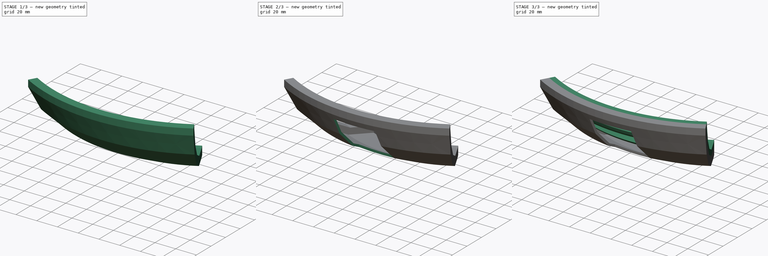
[diagram: build sequence overview — one tinted view per stage of 3, left to right]
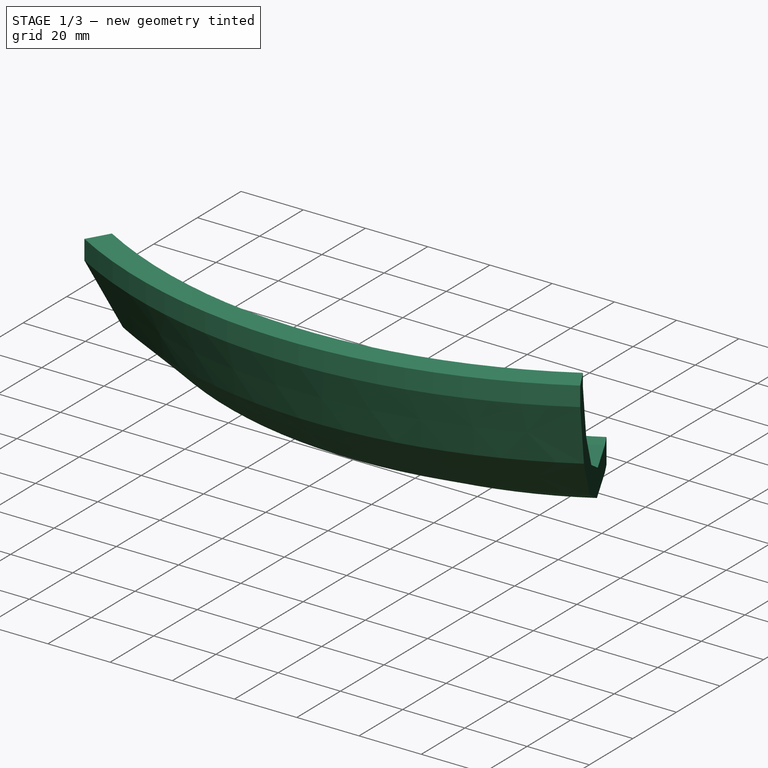
[diagram: stage 1 of 3 — iso view after this stage's code; geometry added in this stage tinted green]
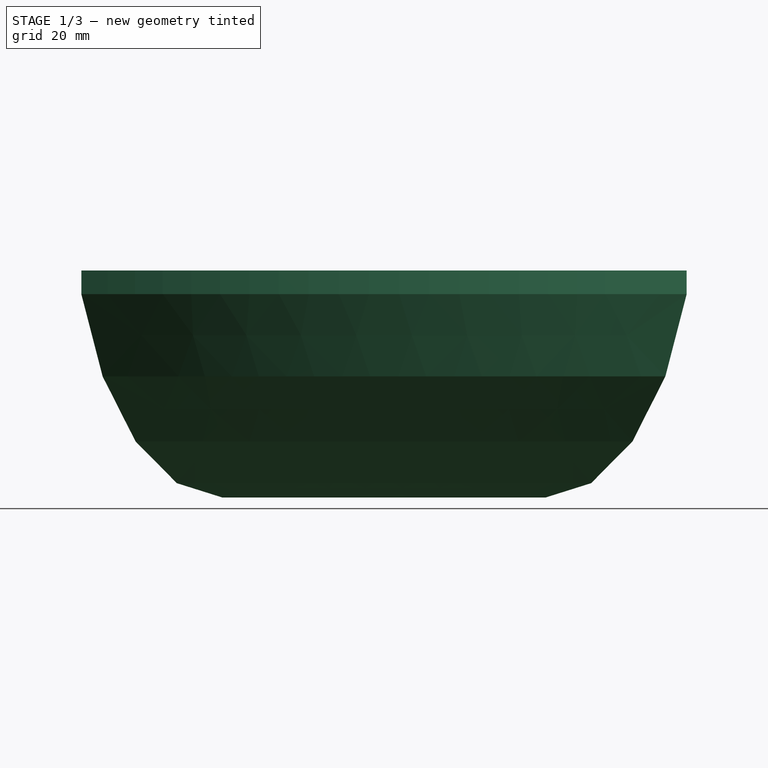
[diagram: stage 1 of 3 — front view after this stage's code; geometry added in this stage tinted green]
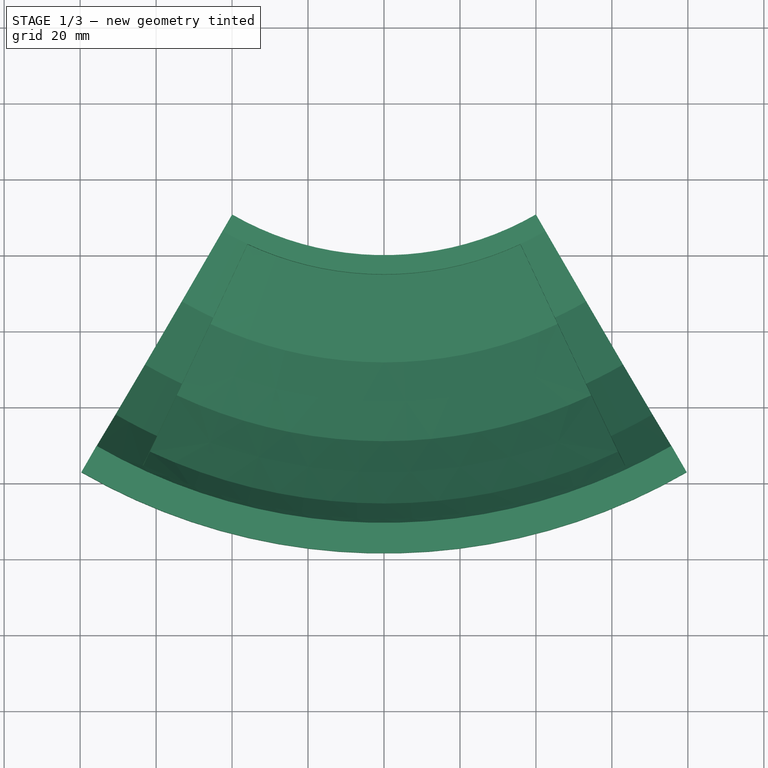
[diagram: stage 1 of 3 — top view after this stage's code; geometry added in this stage tinted green]
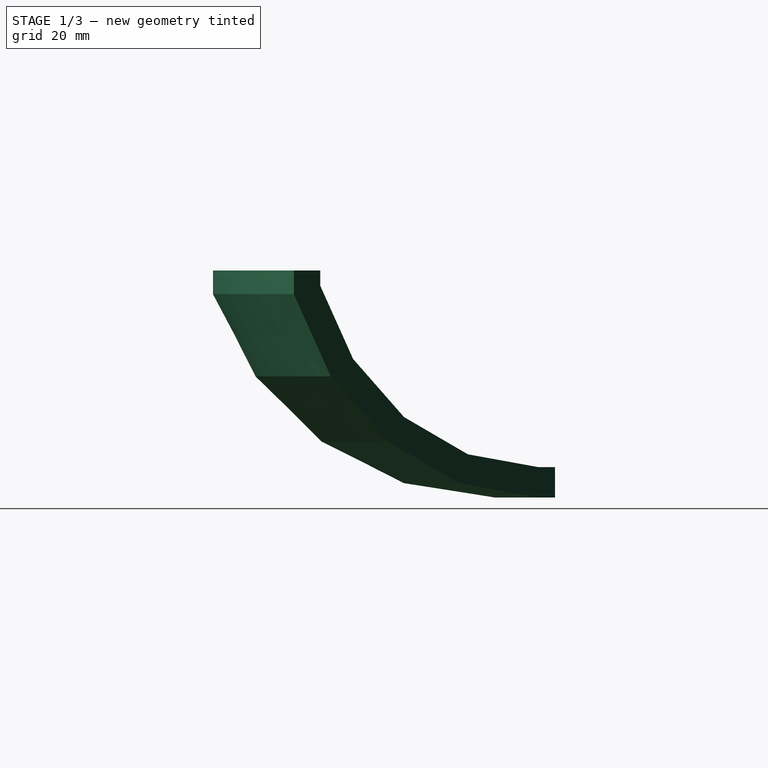
[diagram: stage 1 of 3 — right view after this stage's code; geometry added in this stage tinted green]
FCSTD DOCUMENT  (FreeCAD 2023.521R14555 (Git shallow))
Label: Key_holder
License: All rights reserved
LicenseURL: https://en.wikipedia.org/wiki/All_rights_reserved
objects: Sketcher::SketchObject×5, PartDesign::Revolution×2, PartDesign::Groove×2, PartDesign::Body×2, Spreadsheet::Sheet×1, Part::SubShapeBinder×1, PartDesign::Pocket×1
note: 28 computed .brp shape members not serialized (recipe doc carries the construction recipe); baked Part::Feature solids carry a one-line shape summary decoded from their .brp

FEATURE [PartDesign::Body] Body  label="Inner"
  AutoGroupSolids = false
  ClaimAllChildren = false
  ExportMode = 0
  FixShape = 1
  Group = -> [Sketch,Revolution,Sketch001,Groove]
  InvalidShape = false
  Origin = -> Origin
  Tip = -> Groove
  TreeRank = 10
  ValidateShape = false
  _ExportChildren = -> [Revolution,Groove]
  _GroupVersion = 1
FEATURE [Spreadsheet::Sheet] Spreadsheet  label="Dims"
  PythonMode = false
  ShowCells = 0
  TreeRank = 15
  cells = A1=Dist; B1(dist)=65; A2=Off; B2(offset)=5
FEATURE [Part::SubShapeBinder] Import  label="Import(Groove)"
  BindCopyOnChange = 0
  BindMode = 0
  ClaimChildren = false
  Context = -> Body001 [Import.]
  EdgeTolerance = 1e-06
  FillStyle = 0
  FixShape = 1
  Fuse = false
  InvalidShape = false
  MakeFace = false
  MergeEdges = true
  OffsetFill = false
  OffsetIntersection = false
  OffsetJoinType = 0
  OffsetOpenResult = false
  Outline = false
  PartialLoad = false
  Relative = true
  SplitEdges = false
  Support = -> [Body[Groove.]]
  TightBound = false
  TreeRank = 19
  ValidateShape = false
  _Version = 8
FEATURE [Sketcher::SketchObject] Sketch002
  ArcFitTolerance = 1e-06
  AttachmentSupport = -> [YZ_Plane001]
  ExternalBSplineMaxDegree = 5
  ExternalBSplineTolerance = 0.0001
  ExternalGeometry = -> [Import]
  FixShape = 1
  FullyConstrained = true
  InternalTolerance = 1e-06
  InvalidShape = false
  MakeInternals = false
  MapMode = 5
  Placement = pos=(0,0,0) rot=(0.57735,0.57735,0.57735;2.0944rad)
  Support = -> [YZ_Plane001]
  TreeRank = 11
  ValidateShape = false
  sketch-geometry (14):
    g0: LineSegment StartX=-151.359 StartY=47.793 StartZ=0 EndX=-141.363 EndY=28.488 EndZ=0
    g1: LineSegment StartX=-141.363 StartY=28.488 StartZ=0 EndX=-125.876 EndY=13.1912 EndZ=0
    g2: LineSegment StartX=-125.876 StartY=13.1912 StartZ=0 EndX=-106.464 EndY=3.37936 EndZ=0
    g3: LineSegment StartX=-106.464 StartY=3.37936 StartZ=0 EndX=-85 EndY=-4.4e-15 EndZ=0
    g4: LineSegment StartX=-79.9751 StartY=-8 StartZ=0 EndX=-85 EndY=-8 EndZ=0
    g5: LineSegment StartX=-109.071 StartY=-4.21015 StartZ=0 EndX=-130.818 EndY=6.78197 EndZ=0
    g6: LineSegment StartX=-130.818 StartY=6.78197 StartZ=0 EndX=-148.154 EndY=23.9055 EndZ=0
    g7: LineSegment StartX=-148.154 StartY=23.9055 StartZ=0 EndX=-159.359 EndY=45.5438 EndZ=0
    g8: LineSegment StartX=-159.359 StartY=45.5438 StartZ=0 EndX=-159.359 EndY=51.793 EndZ=0
    g9: LineSegment StartX=-159.359 StartY=51.793 StartZ=0 EndX=-151.359 EndY=51.793 EndZ=0
    g10: LineSegment StartX=-151.359 StartY=51.793 StartZ=0 EndX=-151.359 EndY=47.793 EndZ=0
    g11: LineSegment StartX=-109.071 StartY=-4.21015 StartZ=0 EndX=-85 EndY=-8 EndZ=0
    g12: LineSegment StartX=-79.9751 StartY=-4.5e-15 StartZ=0 EndX=-79.9751 EndY=-8 EndZ=0
    g13: LineSegment StartX=-85 StartY=-4.4e-15 StartZ=0 EndX=-79.9751 EndY=-4.5e-15 EndZ=0
  constraints (35):
    c: Coincident(g1,g0)
    c: Coincident(g2,g1)
    c: Coincident(g3,g2)
    c: Coincident(g6,g5)
    c: Coincident(g7,g6)
    c: Coincident(g8,g7)
    c: Horizontal(g9)
    c: Coincident(g10,g9)
    c: Coincident(g10,g0)
    c: Vertical(g8)
    c: Coincident(g8,g9)
    c: Coincident(g11,g5)
    c: Coincident(g11,g4)
    c: Equal(g11,g5)
    c: Equal(g5,g6)
    c: Equal(g6,g7)
    c: Vertical(g4,g3)
    c: Coincident(g12,g4)
    c: Vertical(g12)
    c: Horizontal(g4)
    c: Equal(g9,g12)
    c: Coincident(g9,g-9)
    c: Coincident(g-3,g0)
    c: Coincident(g-4,g0)
    c: Coincident(g-5,g1)
    c: Coincident(g-6,g2)
    c: Coincident(g3,g-10)
    c: Parallel(g5,g2)
    c: Parallel(g6,g1)
    c: Parallel(g7,g0)
    c: Parallel(g11,g3)
    c: DistanceY(g12,g12) = 8
    c: Coincident(g-11,g12)
    c: Coincident(g13,g3)
    c: Coincident(g13,g12)
FEATURE [PartDesign::Revolution] Revolution001
  AddSubType = 0
  Angle = 60
  Axis = (-2e-16,3e-16,1)
  Base = (0,0,0)
  ClaimChildren = false
  Fit = 0
  FitJoin = 0
  FixShape = 1
  InnerFit = 0
  InnerFitJoin = 0
  InvalidShape = false
  Linearize = true
  Midplane = true
  NewSolid = false
  Profile = -> Sketch002
  ReferenceAxis = -> Sketch002 [V_Axis]
  Refine = true
  Suppress = false
  TreeRank = 12
  ValidateShape = true
  _ProfileBasedVersion = 1
FEATURE [Sketcher::SketchObject] Sketch003
  ArcFitTolerance = 1e-06
  AttachmentSupport = -> [Sketch002]
  ExternalBSplineMaxDegree = 5
  ExternalBSplineTolerance = 0.0001
  ExternalGeometry = -> [Sketch002]
  FixShape = 1
  FullyConstrained = true
  InternalTolerance = 1e-06
  InvalidShape = false
  MakeInternals = false
  MapMode = 5
  Placement = pos=(0,0,0) rot=(0.57735,0.57735,-0.57735;4.18879rad)
  Support = -> [Sketch002]
  TreeRank = 13
  ValidateShape = false
  sketch-geometry (6):
    g0: LineSegment StartX=-156.582 StartY=-45.5438 StartZ=0 EndX=-145.795 EndY=-24.7138 EndZ=0
    g1: LineSegment StartX=-145.795 StartY=-24.7138 StartZ=0 EndX=-129.107 EndY=-8.22982 EndZ=0
    g2: LineSegment StartX=-129.107 StartY=-8.22982 StartZ=0 EndX=-108.172 EndY=2.35171 EndZ=0
    g3: LineSegment StartX=-108.172 StartY=2.35171 StartZ=0 EndX=-85 EndY=6 EndZ=0
    g4: LineSegment StartX=-156.582 StartY=-45.5438 StartZ=0 EndX=-85 EndY=-45.5438 EndZ=0
    g5: LineSegment StartX=-85 StartY=-45.5438 StartZ=0 EndX=-85 EndY=6 EndZ=0
  constraints (18):
    c: Coincident(g1,g0)
    c: Coincident(g2,g1)
    c: Coincident(g3,g2)
    c: Parallel(g3,g-3)
    c: Parallel(g-4,g2)
    c: Parallel(g-6,g1)
    c: Parallel(g0,g-5)
    c: Coincident(g4,g0)
    c: Horizontal(g4)
    c: Coincident(g3,g5)
    c: Coincident(g4,g5)
    c: Vertical(g5)
    c: Vertical(g3,g-3)
    c: Horizontal(g0,g-5)
    c: Equal(g0,g1)
    c: Equal(g1,g2)
    c: Equal(g2,g3)
    c: DistanceY(g3,g-3) = 2
FEATURE [PartDesign::Groove] Groove001
  AddSubType = 1
  Angle = 50
  Axis = (-3e-16,3e-16,1)
  Base = (0,0,0)
  BaseFeature = -> Revolution001
  ClaimChildren = false
  Fit = 0
  FitJoin = 0
  FixShape = 1
  InnerFit = 0
  InnerFitJoin = 0
  InvalidShape = false
  Linearize = true
  Midplane = true
  NewSolid = false
  Profile = -> Sketch003
  ReferenceAxis = -> Z_Axis001
  Refine = true
  Suppress = false
  TreeRank = 18
  ValidateShape = true
  _ProfileBasedVersion = 1
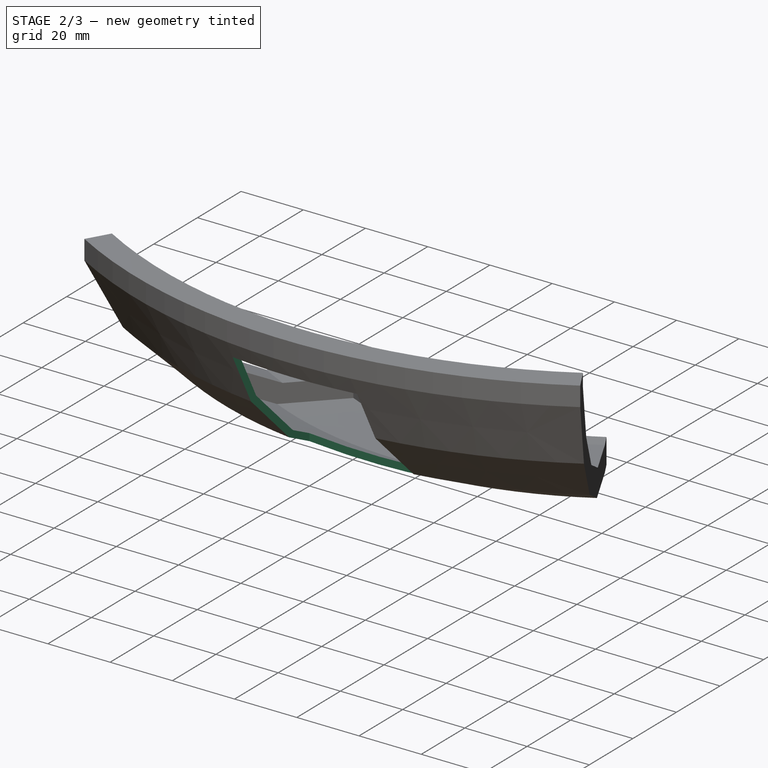
[diagram: stage 2 of 3 — iso view after this stage's code; geometry added in this stage tinted green]
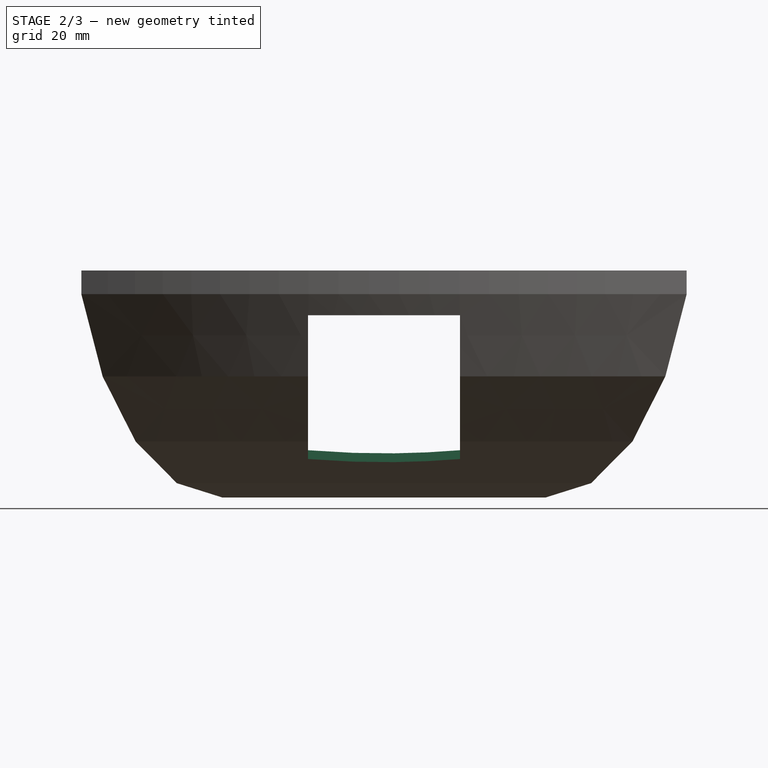
[diagram: stage 2 of 3 — front view after this stage's code; geometry added in this stage tinted green]
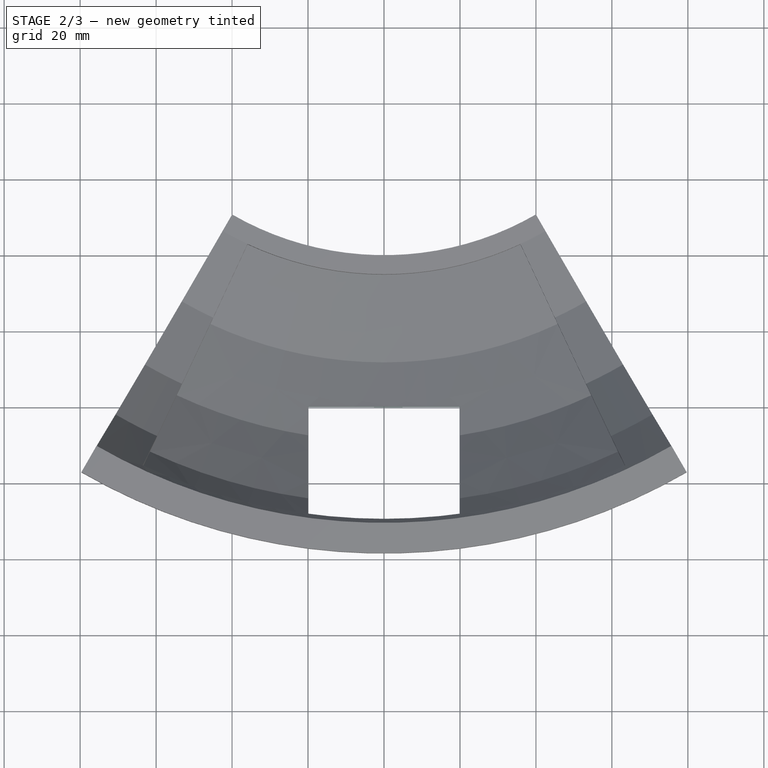
[diagram: stage 2 of 3 — top view after this stage's code; geometry added in this stage tinted green]
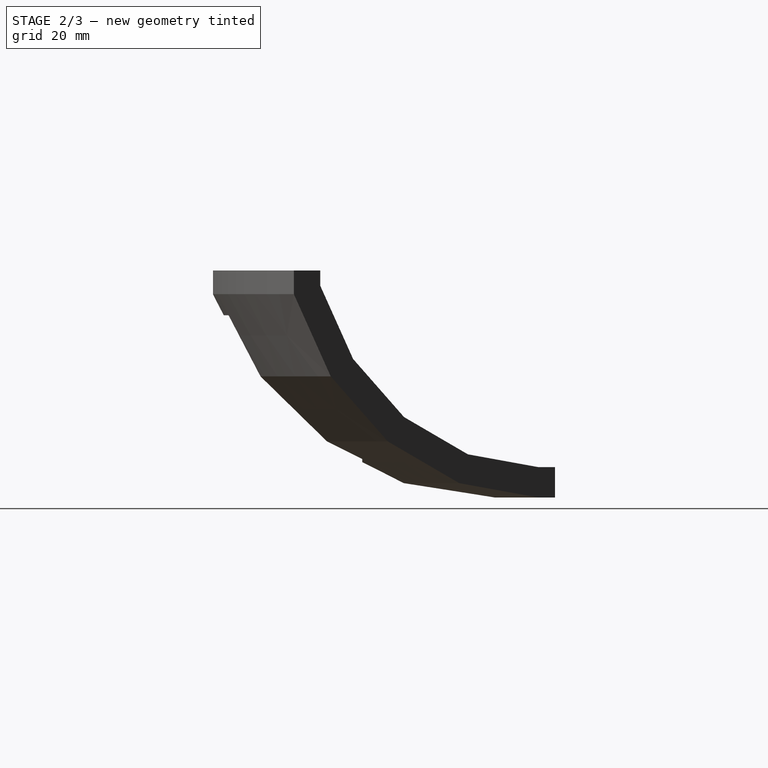
[diagram: stage 2 of 3 — right view after this stage's code; geometry added in this stage tinted green]
FEATURE [Sketcher::SketchObject] Sketch004
  ArcFitTolerance = 1e-06
  AttachmentSupport = -> [YZ_Plane001]
  ExternalBSplineMaxDegree = 5
  ExternalBSplineTolerance = 0.0001
  FixShape = 1
  FullyConstrained = true
  InternalTolerance = 1e-06
  InvalidShape = false
  MakeInternals = false
  MapMode = 5
  Placement = pos=(0,0,0) rot=(0.57735,0.57735,0.57735;2.0944rad)
  Support = -> [YZ_Plane001]
  TreeRank = 20
  ValidateShape = false
  sketch-geometry (4):
    g0: LineSegment StartX=-270 StartY=0 StartZ=0 EndX=-120 EndY=0 EndZ=0
    g1: LineSegment StartX=-120 StartY=0 StartZ=0 EndX=-120 EndY=40 EndZ=0
    g2: LineSegment StartX=-120 StartY=40 StartZ=0 EndX=-270 EndY=40 EndZ=0
    g3: LineSegment StartX=-270 StartY=40 StartZ=0 EndX=-270 EndY=0 EndZ=0
  constraints (12):
    c: Coincident(g0,g1)
    c: Coincident(g1,g2)
    c: Coincident(g2,g3)
    c: Coincident(g3,g0)
    c: Horizontal(g0)
    c: Horizontal(g2)
    c: Vertical(g1)
    c: Vertical(g3)
    c: DistanceY(g3,g3) = 40
    c: DistanceX(g0,g0) = 150
    c: DistanceX(g0,g-1) = 120
    c: Horizontal(g0,g-1)
FEATURE [PartDesign::Pocket] Pocket
  AddSubType = 1
  AlongSketchNormal = false
  AutoTaperInnerAngle = true
  BaseFeature = -> Groove001
  CheckUpToFaceLimits = true
  ClaimChildren = false
  Direction = (-1,2e-16,-3e-16)
  Fit = 0
  FitJoin = 0
  FixShape = 1
  InnerFit = 0
  InnerFitJoin = 0
  InvalidShape = false
  Length = 40
  Length2 = 10
  Linearize = true
  Midplane = true
  NewSolid = false
  Profile = -> Sketch004
  ReferenceAxis = -> Sketch004 [N_Axis]
  Refine = true
  Suppress = false
  TaperInnerAngle = 0
  TaperInnerAngleRev = 0
  TreeRank = 21
  Type = 0
  ValidateShape = true
  _ProfileBasedVersion = 1
  _Version = 1
FEATURE [PartDesign::Body] Body001  label="Outer"
  AutoGroupSolids = false
  ClaimAllChildren = false
  ExportMode = 0
  FixShape = 1
  Group = -> [Sketch002,Revolution001,Sketch003,Groove001,Import,Sketch004,Pocket]
  InvalidShape = false
  Origin = -> Origin001
  Tip = -> Pocket
  TreeRank = 16
  ValidateShape = false
  _ExportChildren = -> [Revolution001,Groove001,Import,Pocket]
  _GroupVersion = 1
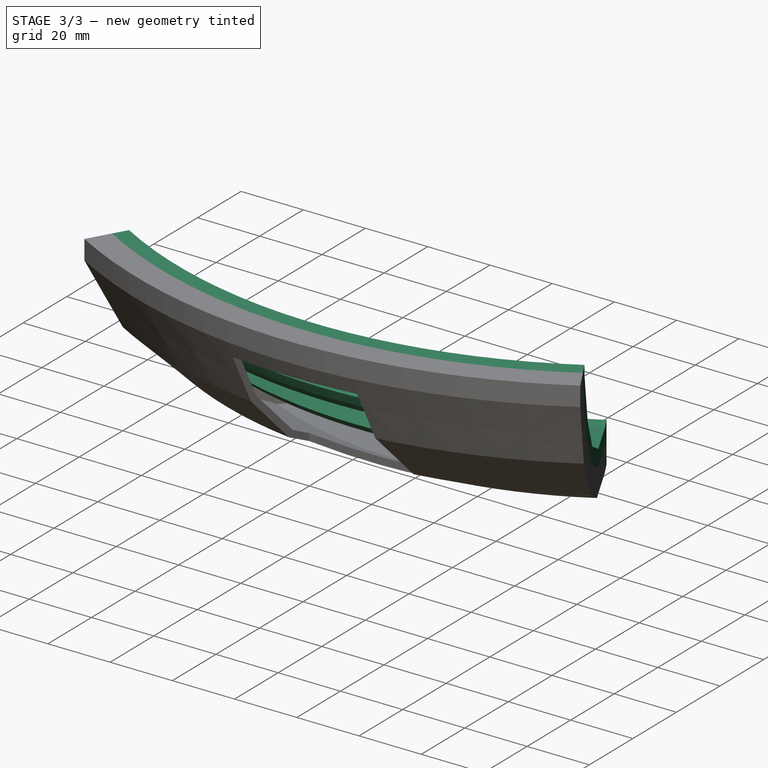
[diagram: stage 3 of 3 — iso view after this stage's code; geometry added in this stage tinted green]
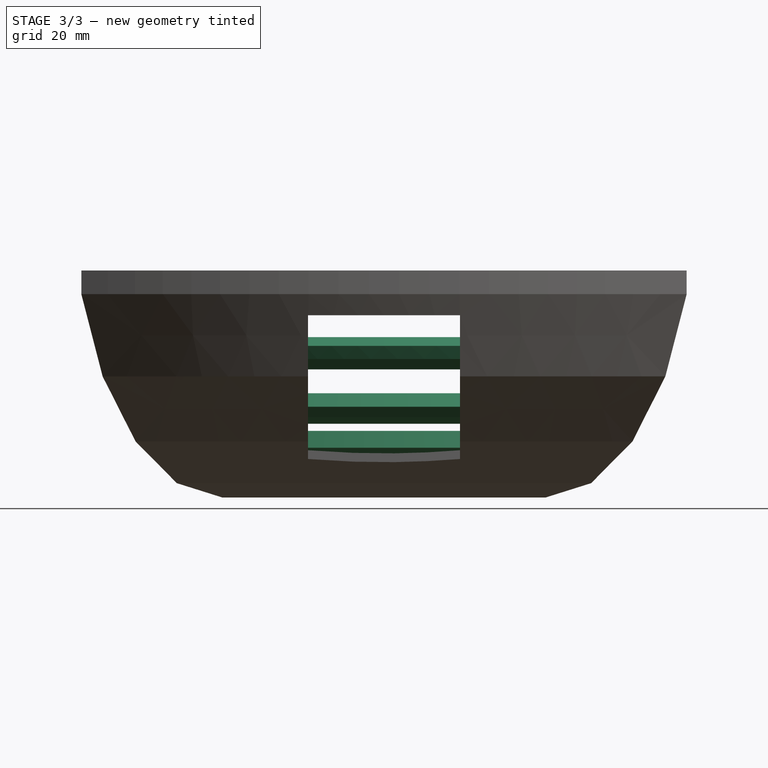
[diagram: stage 3 of 3 — front view after this stage's code; geometry added in this stage tinted green]
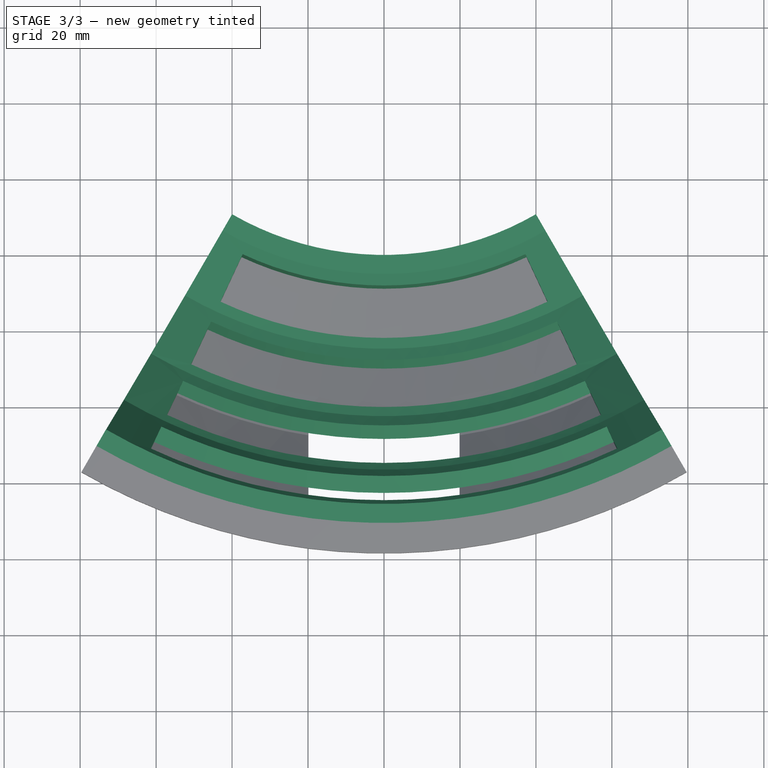
[diagram: stage 3 of 3 — top view after this stage's code; geometry added in this stage tinted green]
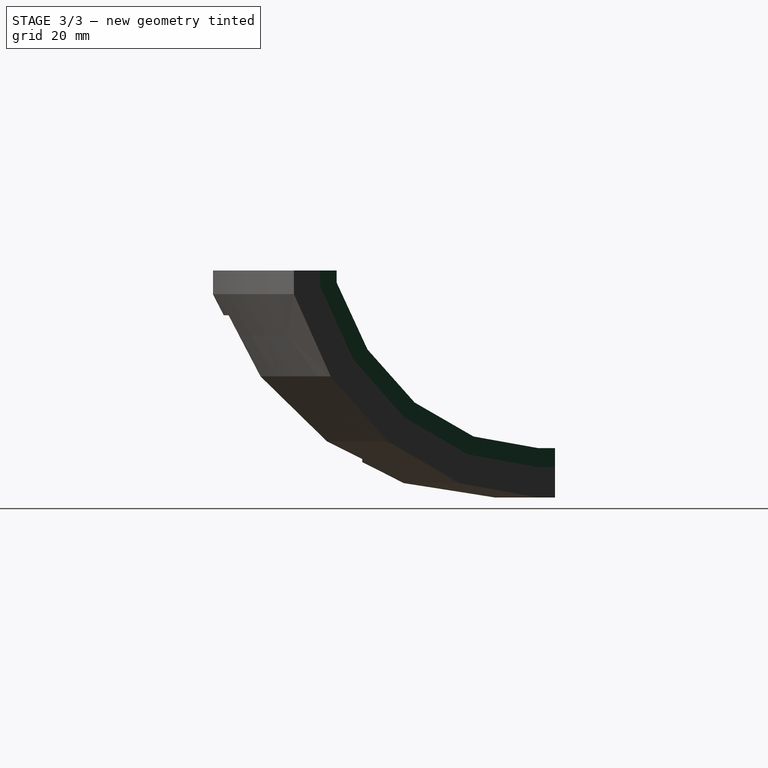
[diagram: stage 3 of 3 — right view after this stage's code; geometry added in this stage tinted green]
FEATURE [Sketcher::SketchObject] Sketch
  ArcFitTolerance = 1e-06
  AttachmentSupport = -> [YZ_Plane]
  ExternalBSplineMaxDegree = 5
  ExternalBSplineTolerance = 0.0001
  FixShape = 1
  FullyConstrained = true
  InternalTolerance = 1e-06
  InvalidShape = false
  MakeInternals = false
  MapMode = 5
  Placement = pos=(0,0,0) rot=(0.57735,0.57735,0.57735;2.0944rad)
  Support = -> [YZ_Plane]
  TreeRank = 11
  ValidateShape = false
  expr: Constraints[34] = <<Dims>>.offset
  expr: Constraints[45] = <<Dims>>.dist
  sketch-geometry (16):
    g0: LineSegment StartX=-146.384 StartY=48.6227 StartZ=0 EndX=-136.979 EndY=30.972 EndZ=0
    g1: LineSegment StartX=-136.979 StartY=30.972 StartZ=0 EndX=-122.653 EndY=17.0164 EndZ=0
    g2: LineSegment StartX=-122.653 StartY=17.0164 StartZ=0 EndX=-104.762 EndY=8.07692 EndZ=0
    g3: LineSegment StartX=-104.762 StartY=8.07692 StartZ=0 EndX=-85 EndY=5 EndZ=0
    g4: Circle [constr] CenterX=-85 CenterY=70 CenterZ=0 NormalX=0 NormalY=0 NormalZ=1 AngleXU=0 Radius=65
    g5: LineSegment StartX=-85 StartY=5 StartZ=0 EndX=-80 EndY=5 EndZ=0
    g6: LineSegment StartX=-80 StartY=0 StartZ=0 EndX=-85 EndY=0 EndZ=0
    g7: LineSegment StartX=-106.487 StartY=3.37936 StartZ=0 EndX=-125.899 EndY=13.1912 EndZ=0
    g8: LineSegment StartX=-125.899 StartY=13.1912 StartZ=0 EndX=-141.363 EndY=28.488 EndZ=0
    g9: LineSegment StartX=-141.363 StartY=28.488 StartZ=0 EndX=-151.384 EndY=47.793 EndZ=0
    g10: LineSegment StartX=-151.384 StartY=47.793 StartZ=0 EndX=-151.384 EndY=51.793 EndZ=0
    g11: LineSegment StartX=-151.384 StartY=51.793 StartZ=0 EndX=-146.384 EndY=51.793 EndZ=0
    g12: LineSegment StartX=-146.384 StartY=51.793 StartZ=0 EndX=-146.384 EndY=48.6227 EndZ=0
    g13: Circle [constr] CenterX=-85 CenterY=70 CenterZ=0 NormalX=0 NormalY=0 NormalZ=1 AngleXU=0 Radius=70
    g14: LineSegment StartX=-106.487 StartY=3.37936 StartZ=0 EndX=-85 EndY=-4e-16 EndZ=0
    g15: LineSegment StartX=-80 StartY=5 StartZ=0 EndX=-80 EndY=0 EndZ=0
  constraints (47):
    c: Coincident(g1,g0)
    c: Coincident(g2,g1)
    c: Coincident(g3,g2)
    c: Equal(g3,g2)
    c: Equal(g2,g1)
    c: Equal(g1,g0)
    c: Coincident(g5,g3)
    c: Horizontal(g5)
    c: PointOnObject(g6,g-1)
    c: Coincident(g8,g7)
    c: Coincident(g9,g8)
    c: Coincident(g10,g9)
    c: Horizontal(g11)
    c: Coincident(g12,g11)
    c: Coincident(g12,g0)
    c: Vertical(g12)
    c: Vertical(g10)
    c: Coincident(g10,g11)
    c: Coincident(g13,g4)
    c: Coincident(g14,g7)
    c: Coincident(g14,g6)
    c: Equal(g14,g7)
    c: Equal(g7,g8)
    c: Equal(g8,g9)
    c: PointOnObject(g8,g13)
    c: PointOnObject(g9,g13)
    c: PointOnObject(g7,g13)
    c: PointOnObject(g7,g13)
    c: PointOnObject(g6,g13)
    c: PointOnObject(g0,g4)
    c: PointOnObject(g0,g4)
    c: PointOnObject(g1,g4)
    c: PointOnObject(g2,g4)
    c: PointOnObject(g3,g4)
    c: DistanceY(g-1,g5) = 5
    c: DistanceX(g5,g5) = 5
    c: Distance(g3) = 20
    c: Vertical(g6,g3)
    c: Coincident(g15,g5)
    c: Coincident(g15,g6)
    c: Vertical(g15)
    c: Horizontal(g6)
    c: Equal(g11,g15)
    c: DistanceX(g6,g-1) = 80
    c: DistanceX(g4,g5) = 5
    c: DistanceY(g5,g4) = 65
    c: DistanceY(g10,g10) = 4
FEATURE [PartDesign::Revolution] Revolution
  AddSubType = 0
  Angle = 60
  Axis = (-2e-16,3e-16,1)
  Base = (0,0,0)
  ClaimChildren = false
  Fit = 0
  FitJoin = 0
  FixShape = 1
  InnerFit = 0
  InnerFitJoin = 0
  InvalidShape = false
  Linearize = true
  Midplane = true
  NewSolid = false
  Profile = -> Sketch
  ReferenceAxis = -> Sketch [V_Axis]
  Refine = true
  Suppress = false
  TreeRank = 12
  ValidateShape = true
  _ProfileBasedVersion = 1
FEATURE [Sketcher::SketchObject] Sketch001
  ArcFitTolerance = 1e-06
  AttachmentSupport = -> [Sketch]
  ExternalBSplineMaxDegree = 5
  ExternalBSplineTolerance = 0.0001
  ExternalGeometry = -> [Sketch]
  FixShape = 1
  FullyConstrained = true
  InternalTolerance = 1e-06
  InvalidShape = false
  MakeInternals = false
  MapMode = 5
  Placement = pos=(0,0,0) rot=(0.57735,0.57735,-0.57735;4.18879rad)
  Support = -> [Sketch]
  TreeRank = 13
  ValidateShape = false
  sketch-geometry (20):
    g0: LineSegment StartX=-143.148 StartY=-31.9278 StartZ=0 EndX=-149.599 EndY=-44.3533 EndZ=0
    g1: LineSegment StartX=-128.655 StartY=-15.9167 StartZ=0 EndX=-138.608 EndY=-25.7625 EndZ=0
    g2: LineSegment StartX=-109.946 StartY=-5.1276 StartZ=0 EndX=-122.441 EndY=-11.4429 EndZ=0
    g3: LineSegment StartX=-88.8285 StartY=-0.602126 StartZ=0 EndX=-102.658 EndY=-2.77724 EndZ=0
    g4: GeomPoint [constr] X=-146.373 Y=-38.1405 Z=0
    g5: GeomPoint [constr] X=-133.631 Y=-20.8396 Z=0
    g6: GeomPoint [constr] X=-116.193 Y=-8.28526 Z=0
    g7: GeomPoint [constr] X=-95.7435 Y=-1.68968 Z=0
    g8: LineSegment StartX=-143.148 StartY=-31.9278 StartZ=0 EndX=-134.273 EndY=-36.5351 EndZ=0
    g9: LineSegment StartX=-134.273 StartY=-36.5351 StartZ=0 EndX=-140.723 EndY=-48.9606 EndZ=0
    g10: LineSegment StartX=-140.723 StartY=-48.9606 StartZ=0 EndX=-149.599 EndY=-44.3533 EndZ=0
    g11: LineSegment StartX=-138.608 StartY=-25.7625 StartZ=0 EndX=-131.575 EndY=-32.8717 EndZ=0
    g12: LineSegment StartX=-131.575 StartY=-32.8717 StartZ=0 EndX=-121.622 EndY=-23.026 EndZ=0
    g13: LineSegment StartX=-121.622 StartY=-23.026 StartZ=0 EndX=-128.655 EndY=-15.9167 EndZ=0
    g14: LineSegment StartX=-122.441 StartY=-11.4429 StartZ=0 EndX=-117.93 EndY=-20.3677 EndZ=0
    g15: LineSegment StartX=-117.93 StartY=-20.3677 StartZ=0 EndX=-105.435 EndY=-14.0524 EndZ=0
    g16: LineSegment StartX=-105.435 StartY=-14.0524 StartZ=0 EndX=-109.946 EndY=-5.1276 EndZ=0
    g17: LineSegment StartX=-102.658 StartY=-2.77724 StartZ=0 EndX=-101.105 EndY=-12.6558 EndZ=0
    g18: LineSegment StartX=-87.2748 StartY=-10.4807 StartZ=0 EndX=-88.8285 EndY=-0.602126 EndZ=0
    g19: LineSegment StartX=-101.105 StartY=-12.6558 StartZ=0 EndX=-87.2748 EndY=-10.4807 EndZ=0
  constraints (48):
    c: PointOnObject(g0,g-5)
    c: PointOnObject(g1,g-6)
    c: PointOnObject(g2,g-4)
    c: PointOnObject(g3,g-3)
    c: Symmetric(g-3,g-3,g7)
    c: Symmetric(g3,g3,g7)
    c: Symmetric(g2,g2,g6)
    c: Symmetric(g-4,g-4,g6)
    c: Symmetric(g1,g1,g5)
    c: Symmetric(g-6,g-6,g5)
    c: Symmetric(g0,g0,g4)
    c: Symmetric(g-5,g-5,g4)
    c: Equal(g0,g1)
    c: Equal(g1,g2)
    c: Coincident(g8,g0)
    c: Coincident(g10,g9)
    c: Coincident(g10,g0)
    c: Coincident(g11,g1)
    c: Coincident(g12,g11)
    c: Coincident(g13,g12)
    c: Coincident(g13,g1)
    c: Coincident(g14,g2)
    c: Coincident(g15,g14)
    c: Coincident(g16,g15)
    c: Coincident(g16,g2)
    c: Coincident(g17,g3)
    c: Coincident(g3,g18)
    c: Parallel(g2,g15)
    c: Parallel(g12,g1)
    c: Parallel(g9,g0)
    c: Coincident(g8,g9)
    c: Perpendicular(g0,g8)
    c: Perpendicular(g1,g13)
    c: Perpendicular(g2,g16)
    c: Perpendicular(g3,g18)
    c: Equal(g12,g9)
    c: Equal(g16,g13)
    c: Equal(g13,g8)
    c: Equal(g8,g18)
    c: Distance(g18) = 10
    c: Coincident(g19,g17)
    c: Coincident(g19,g18)
    c: Equal(g19,g3)
    c: Equal(g3,g12)
    c: Distance(g3) = 14
    c: Equal(g17,g14)
    c: Equal(g14,g18)
    c: Equal(g18,g11)
FEATURE [PartDesign::Groove] Groove
  AddSubType = 1
  Angle = 50
  Axis = (-3e-16,3e-16,1)
  Base = (0,0,0)
  BaseFeature = -> Revolution
  ClaimChildren = false
  Fit = 0
  FitJoin = 0
  FixShape = 1
  InnerFit = 0
  InnerFitJoin = 0
  InvalidShape = false
  Linearize = true
  Midplane = true
  NewSolid = false
  Profile = -> Sketch001
  ReferenceAxis = -> Z_Axis
  Refine = true
  Suppress = false
  TreeRank = 14
  ValidateShape = true
  _ProfileBasedVersion = 1
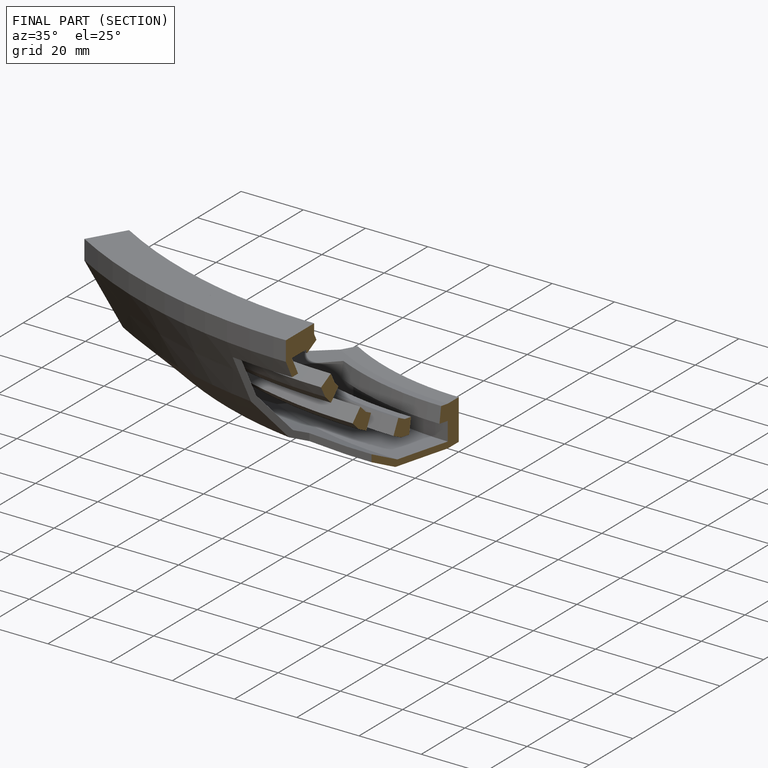
[diagram: finished part — half-section view (interior)]
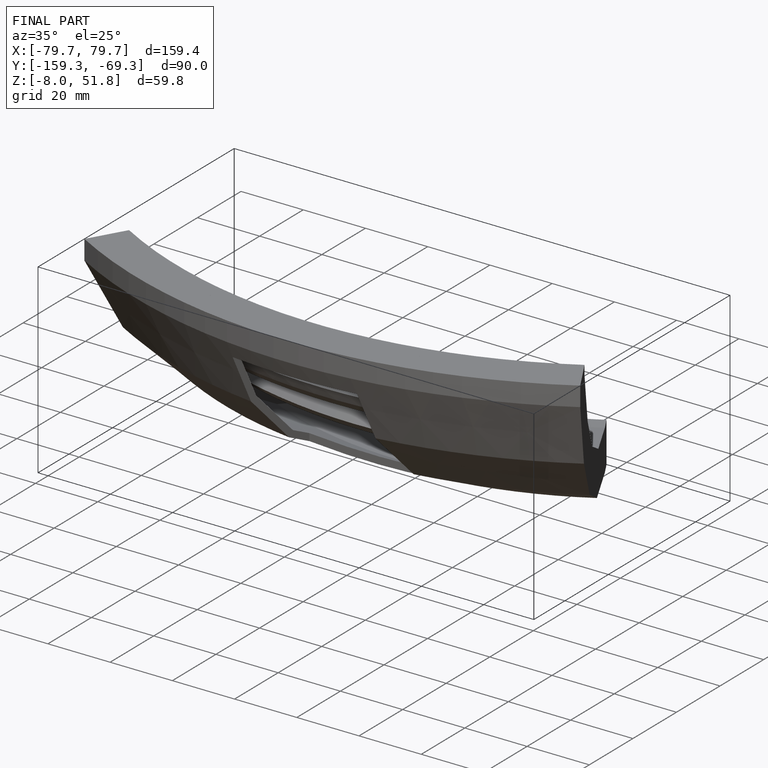
[diagram: finished part — iso view with bounding-box wireframe]
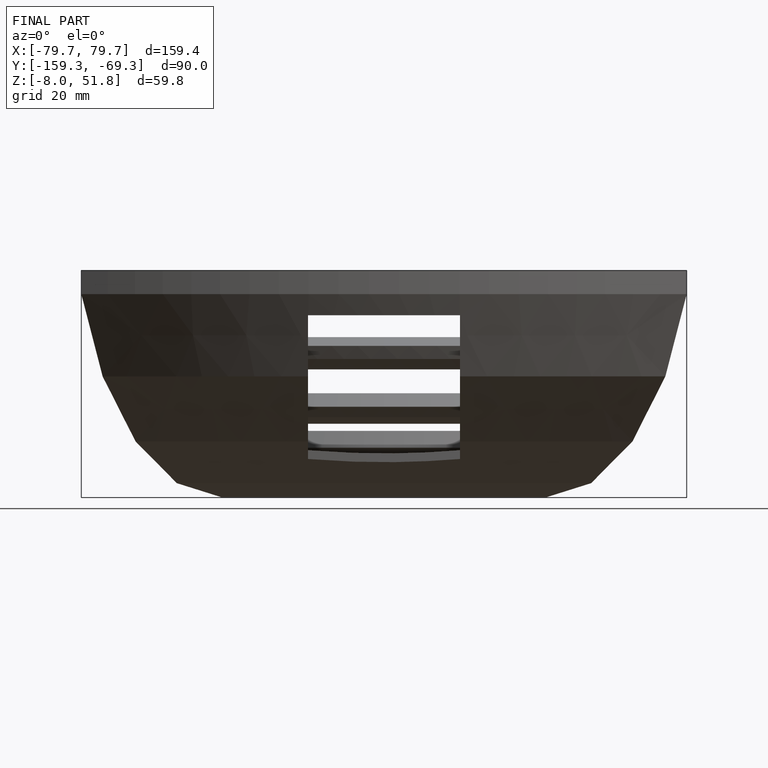
[diagram: finished part — front view with bounding-box wireframe]
